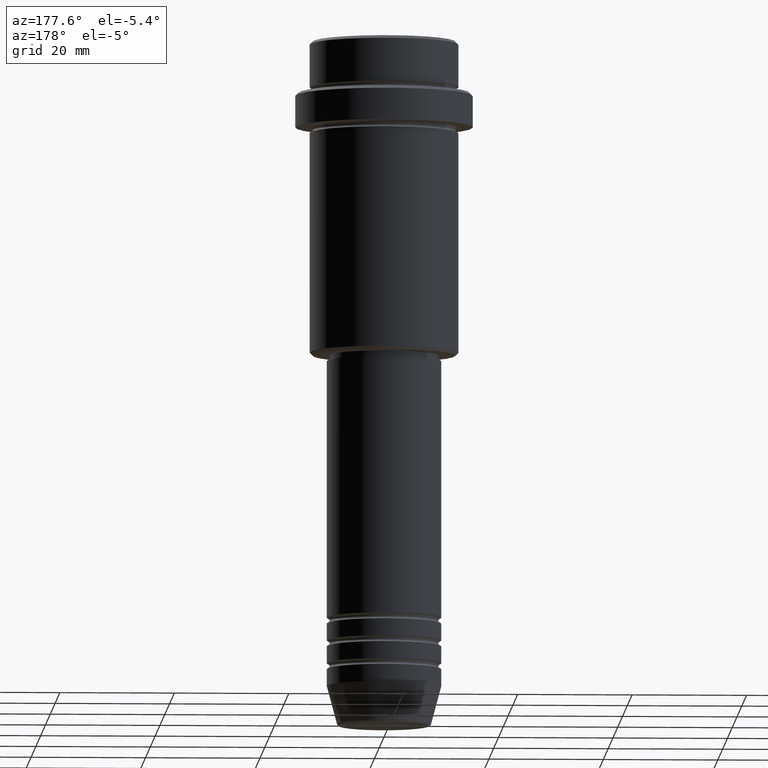
[diagram: clean part render]
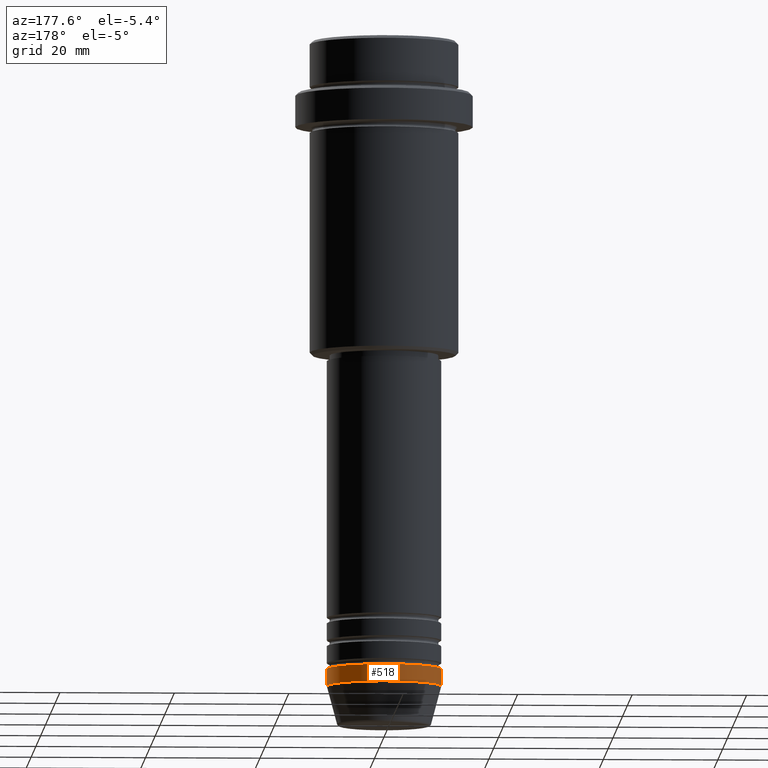
[diagram: same view with one face highlighted and labeled with its STEP entity id]
A machine part, auxiliary view. The second image highlights one B-rep face of the part: STEP entity #518.
In plain terms, the highlighted cylindrical surface (partial cylindrical patch) has radius 10 mm, axis along (-0, -0, 1).
Its self-contained STEP definition (entity closure, byte-faithful):
#2 = ORIENTED_EDGE ( 'NONE', *, *, #90, .F. ) ;
#28 = VERTEX_POINT ( 'NONE', #1111 ) ;
#33 = EDGE_CURVE ( 'NONE', #939, #28, #375, .T. ) ;
#62 = DIRECTION ( 'NONE',  ( 1.000000000000000000, 0.000000000000000000, 0.000000000000000000 ) ) ;
#90 = EDGE_CURVE ( 'NONE', #28, #127, #201, .T. ) ;
#123 = DIRECTION ( 'NONE',  ( -0.000000000000000000, -0.000000000000000000, 1.000000000000000000 ) ) ;
#127 = VERTEX_POINT ( 'NONE', #607 ) ;
#186 = DIRECTION ( 'NONE',  ( -0.000000000000000000, -0.000000000000000000, 1.000000000000000000 ) ) ;
#197 = CARTESIAN_POINT ( 'NONE',  ( 10.00000000000000000, 0.000000000000000000, -113.0000000000000000 ) ) ;
#201 = CIRCLE ( 'NONE', #871, 10.00000000000000000 ) ;
#230 = AXIS2_PLACEMENT_3D ( 'NONE', #1207, #123, #554 ) ;
#296 = CARTESIAN_POINT ( 'NONE',  ( 0.000000000000000000, 0.000000000000000000, -110.0000000000000000 ) ) ;
#375 = LINE ( 'NONE', #816, #1185 ) ;
#440 = ORIENTED_EDGE ( 'NONE', *, *, #1114, .T. ) ;
#483 = LINE ( 'NONE', #838, #734 ) ;
#496 = EDGE_CURVE ( 'NONE', #699, #127, #483, .T. ) ;
#518 = ADVANCED_FACE ( 'NONE', ( #628 ), #934, .T. ) ;
#554 = DIRECTION ( 'NONE',  ( 1.000000000000000000, 0.000000000000000000, 0.000000000000000000 ) ) ;
#607 = CARTESIAN_POINT ( 'NONE',  ( -10.00000000000000000, 1.224646799147353256E-15, -110.0000000000000000 ) ) ;
#628 = FACE_OUTER_BOUND ( 'NONE', #1139, .T. ) ;
#668 = AXIS2_PLACEMENT_3D ( 'NONE', #1051, #186, #958 ) ;
#699 = VERTEX_POINT ( 'NONE', #755 ) ;
#702 = DIRECTION ( 'NONE',  ( -0.000000000000000000, -0.000000000000000000, 1.000000000000000000 ) ) ;
#734 = VECTOR ( 'NONE', #1376, 1000.000000000000000 ) ;
#755 = CARTESIAN_POINT ( 'NONE',  ( -10.00000000000000000, 1.224646799147353256E-15, -113.0000000000000000 ) ) ;
#816 = CARTESIAN_POINT ( 'NONE',  ( 10.00000000000000000, 0.000000000000000000, 0.000000000000000000 ) ) ;
#818 = ORIENTED_EDGE ( 'NONE', *, *, #496, .T. ) ;
#838 = CARTESIAN_POINT ( 'NONE',  ( -10.00000000000000000, 1.224646799147353256E-15, 0.000000000000000000 ) ) ;
#839 = DIRECTION ( 'NONE',  ( -0.000000000000000000, -0.000000000000000000, 1.000000000000000000 ) ) ;
#871 = AXIS2_PLACEMENT_3D ( 'NONE', #296, #839, #62 ) ;
#934 = CYLINDRICAL_SURFACE ( 'NONE', #668, 10.00000000000000000 ) ;
#939 = VERTEX_POINT ( 'NONE', #197 ) ;
#958 = DIRECTION ( 'NONE',  ( 1.000000000000000000, 0.000000000000000000, 0.000000000000000000 ) ) ;
#967 = CIRCLE ( 'NONE', #230, 10.00000000000000000 ) ;
#1051 = CARTESIAN_POINT ( 'NONE',  ( 0.000000000000000000, 0.000000000000000000, 0.000000000000000000 ) ) ;
#1111 = CARTESIAN_POINT ( 'NONE',  ( 10.00000000000000000, 0.000000000000000000, -110.0000000000000000 ) ) ;
#1114 = EDGE_CURVE ( 'NONE', #939, #699, #967, .T. ) ;
#1139 = EDGE_LOOP ( 'NONE', ( #440, #818, #2, #1346 ) ) ;
#1185 = VECTOR ( 'NONE', #702, 1000.000000000000000 ) ;
#1207 = CARTESIAN_POINT ( 'NONE',  ( 0.000000000000000000, 0.000000000000000000, -113.0000000000000000 ) ) ;
#1346 = ORIENTED_EDGE ( 'NONE', *, *, #33, .F. ) ;
#1376 = DIRECTION ( 'NONE',  ( -0.000000000000000000, -0.000000000000000000, 1.000000000000000000 ) ) ;